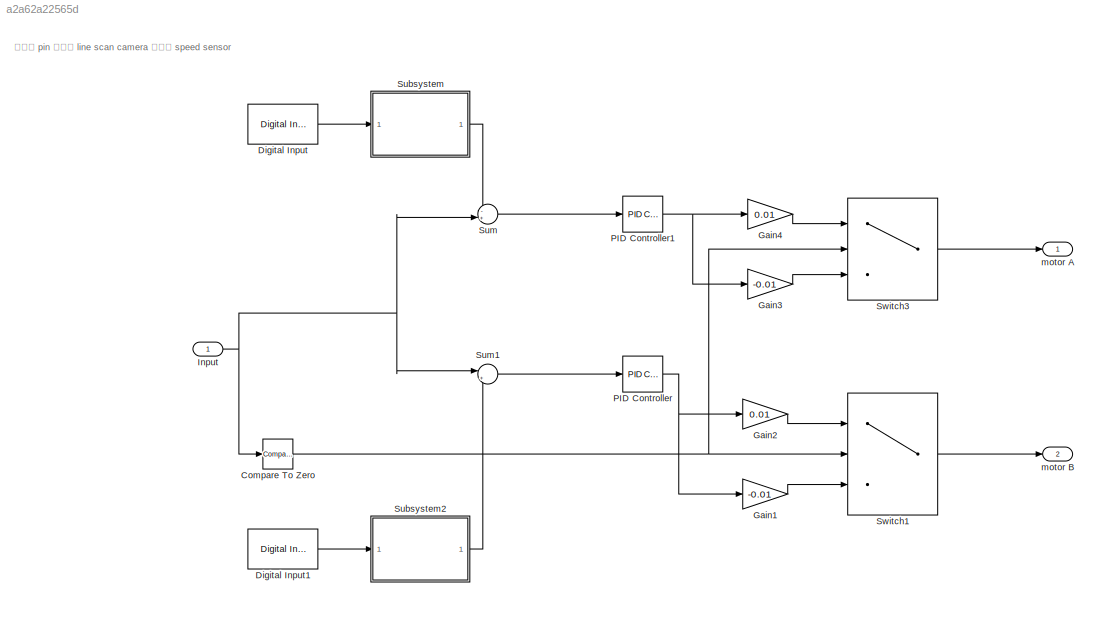
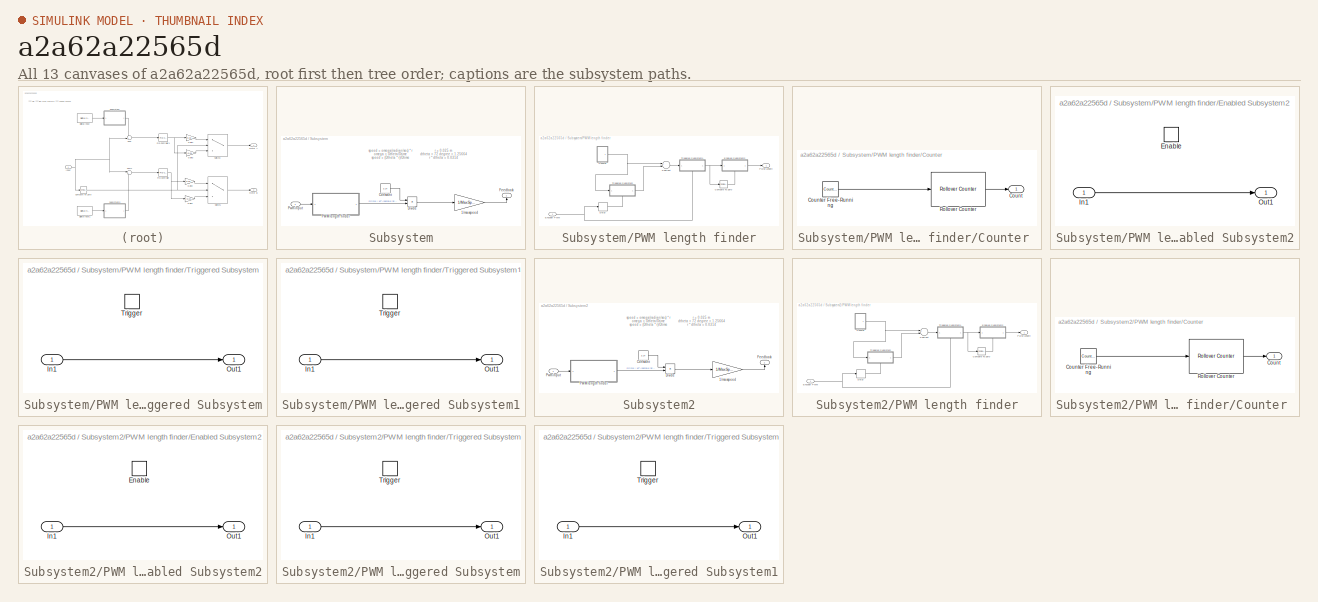
[diagram: thumbnail index - all 13 canvases of the model, root first then tree order]
MODEL slx_a2a62a22565d
KIND model
CONFIG AbsTol = auto
CONFIG EnableMultiTasking = off
CONFIG FixedStep = auto
CONFIG MaxStep = auto
CONFIG MinStep = auto
CONFIG RelTol = 1e-3
CONFIG SampleTimeConstraint = Unconstrained
CONFIG Solver = VariableStepAuto
CONFIG SolverName = VariableStepAuto
CONFIG StartTime = 0.0
CONFIG StopTime = 10.0
BLOCK [Reference] Compare To Zero  REF=simulink/Logic and Bit
Operations/Compare
To Zero
  Ports = [1, 1]
  SourceBlock = simulink/Logic and Bit\nOperations/Compare\nTo Zero
  SourceType = Compare To Zero
BLOCK [Reference] Digital Input  REF=frdmkl25zlib/Digital Input
  Ports = [0, 1]
  Priority = 2
  SourceBlock = frdmkl25zlib/Digital Input
  SourceType = Digital Input
BLOCK [Reference] Digital Input1  REF=frdmkl25zlib/Digital Input
  Ports = [0, 1]
  Priority = 2
  SourceBlock = frdmkl25zlib/Digital Input
  SourceType = Digital Input
BLOCK [Gain] Gain1
  Gain = -0.01
  OutDataTypeStr = Inherit: Inherit via internal rule
  ParamDataTypeStr = Inherit: Inherit via internal rule
  SaturateOnIntegerOverflow = off
BLOCK [Gain] Gain2
  Gain = 0.01
  OutDataTypeStr = Inherit: Inherit via internal rule
  ParamDataTypeStr = Inherit: Inherit via internal rule
  SaturateOnIntegerOverflow = off
BLOCK [Gain] Gain3
  Gain = -0.01
  OutDataTypeStr = Inherit: Inherit via internal rule
  ParamDataTypeStr = Inherit: Inherit via internal rule
  SaturateOnIntegerOverflow = off
BLOCK [Gain] Gain4
  Gain = 0.01
  OutDataTypeStr = Inherit: Inherit via internal rule
  ParamDataTypeStr = Inherit: Inherit via internal rule
  SaturateOnIntegerOverflow = off
BLOCK [Inport] Input 
  IconDisplay = Port number
BLOCK [Reference] PID Controller  REF=simulink/Continuous/PID Controller
  Ports = [1, 1]
  SourceBlock = simulink/Continuous/PID Controller
  SourceType = PID 1dof
BLOCK [Reference] PID Controller1  REF=simulink/Continuous/PID Controller
  Ports = [1, 1]
  SourceBlock = simulink/Continuous/PID Controller
  SourceType = PID 1dof
BLOCK [SubSystem] Subsystem
  Ports = [1, 1]
  RequestExecContextInheritance = off
  Variant = off
BLOCK [Gain] Subsystem/1//maxspeed
  Gain = 1/MaxSpeed
  OutDataTypeStr = Inherit: Inherit via internal rule
  ParamDataTypeStr = Inherit: Inherit via internal rule
  SaturateOnIntegerOverflow = off
BLOCK [Constant] Subsystem/Constant
  Value = 3.14
BLOCK [Product] Subsystem/Divide
  InputSameDT = off
  Inputs = */
  OutDataTypeStr = Inherit: Inherit via internal rule
  Ports = [2, 1]
  RndMeth = Floor
  SaturateOnIntegerOverflow = off
BLOCK [Outport] Subsystem/Feedback
  IconDisplay = Port number
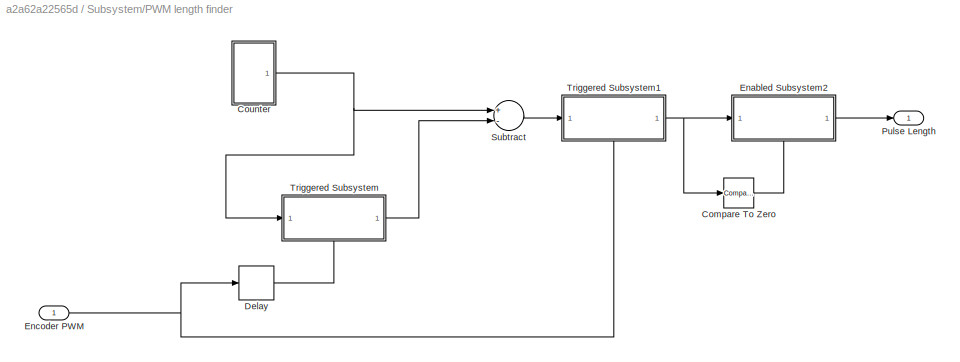
BLOCK [SubSystem] Subsystem/PWM length finder
  Ports = [1, 1]
  RequestExecContextInheritance = off
  Variant = off
BLOCK [Reference] Subsystem/PWM length finder/Compare To Zero  REF=simulink/Logic and Bit
Operations/Compare
To Zero
  Ports = [1, 1]
  SourceBlock = simulink/Logic and Bit\nOperations/Compare\nTo Zero
  SourceType = Compare To Zero
BLOCK [SubSystem] Subsystem/PWM length finder/Counter 
  Ports = [0, 1]
  RequestExecContextInheritance = off
  Variant = off
BLOCK [Outport] Subsystem/PWM length finder/Counter /Count
  IconDisplay = Port number
BLOCK [Reference] Subsystem/PWM length finder/Counter /Counter Free-Running  REF=simulink/Sources/Counter
Free-Running
  Ports = [0, 1]
  SourceBlock = simulink/Sources/Counter\nFree-Running
  SourceType = Counter Free-Running
BLOCK [Reference] Subsystem/PWM length finder/Counter /Rollover Counter   REF=slrtlib/Incremental
Encoder/Utilities/Rollover/Rollover Counter 
  Ports = [1, 1]
  SourceBlock = slrtlib/Incremental\nEncoder/Utilities/Rollover/Rollover Counter
  SourceType = RolloverCounter
BLOCK [Delay] Subsystem/PWM length finder/Delay
  DelayLength = 1
  InitialCondition = 0
  InputPortMap = u0
  Ports = [1, 1]
  SampleTime = 0.01
BLOCK [SubSystem] Subsystem/PWM length finder/Enabled Subsystem2
  Ports = [1, 1, 1]
  RequestExecContextInheritance = off
  TreatAsAtomicUnit = on
  Variant = off
BLOCK [EnablePort] Subsystem/PWM length finder/Enabled Subsystem2/Enable
  Ports = []
BLOCK [Inport] Subsystem/PWM length finder/Enabled Subsystem2/In1
  IconDisplay = Port number
BLOCK [Outport] Subsystem/PWM length finder/Enabled Subsystem2/Out1
  IconDisplay = Port number
BLOCK [Inport] Subsystem/PWM length finder/Encoder PWM
  IconDisplay = Port number
BLOCK [Outport] Subsystem/PWM length finder/Pulse Length
  IconDisplay = Port number
BLOCK [Sum] Subsystem/PWM length finder/Subtract
  InputSameDT = off
  Inputs = +-
  OutDataTypeStr = Inherit: Inherit via internal rule
  Ports = [2, 1]
  SaturateOnIntegerOverflow = off
BLOCK [SubSystem] Subsystem/PWM length finder/Triggered Subsystem
  Ports = [1, 1, 0, 1]
  RequestExecContextInheritance = off
  TreatAsAtomicUnit = on
  Variant = off
BLOCK [Inport] Subsystem/PWM length finder/Triggered Subsystem/In1
  IconDisplay = Port number
BLOCK [Outport] Subsystem/PWM length finder/Triggered Subsystem/Out1
  IconDisplay = Port number
BLOCK [TriggerPort] Subsystem/PWM length finder/Triggered Subsystem/Trigger
  Ports = []
  StatesWhenEnabling = held
  TriggerType = falling
  VariantControl = Variant
BLOCK [SubSystem] Subsystem/PWM length finder/Triggered Subsystem1
  Ports = [1, 1, 0, 1]
  RequestExecContextInheritance = off
  TreatAsAtomicUnit = on
  Variant = off
BLOCK [Inport] Subsystem/PWM length finder/Triggered Subsystem1/In1
  IconDisplay = Port number
BLOCK [Outport] Subsystem/PWM length finder/Triggered Subsystem1/Out1
  IconDisplay = Port number
BLOCK [TriggerPort] Subsystem/PWM length finder/Triggered Subsystem1/Trigger
  Ports = []
  StatesWhenEnabling = held
  TriggerType = falling
  VariantControl = Variant
BLOCK [Inport] Subsystem/Pwm input
  IconDisplay = Port number
BLOCK [SubSystem] Subsystem2
  Ports = [1, 1]
  RequestExecContextInheritance = off
  Variant = off
BLOCK [Gain] Subsystem2/1//maxspeed
  Gain = 1/MaxSpeed
  OutDataTypeStr = Inherit: Inherit via internal rule
  ParamDataTypeStr = Inherit: Inherit via internal rule
  SaturateOnIntegerOverflow = off
BLOCK [Constant] Subsystem2/Constant
  Value = 3.14
BLOCK [Product] Subsystem2/Divide
  InputSameDT = off
  Inputs = */
  OutDataTypeStr = Inherit: Inherit via internal rule
  Ports = [2, 1]
  RndMeth = Floor
  SaturateOnIntegerOverflow = off
BLOCK [Outport] Subsystem2/Feedback
  IconDisplay = Port number
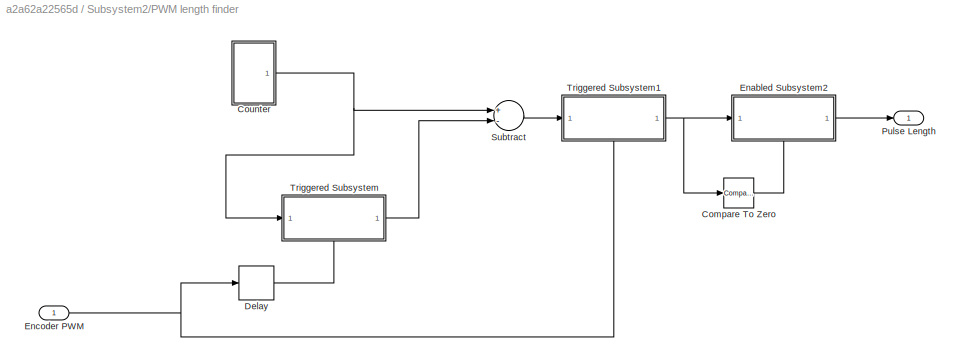
BLOCK [SubSystem] Subsystem2/PWM length finder
  Ports = [1, 1]
  RequestExecContextInheritance = off
  Variant = off
BLOCK [Reference] Subsystem2/PWM length finder/Compare To Zero  REF=simulink/Logic and Bit
Operations/Compare
To Zero
  Ports = [1, 1]
  SourceBlock = simulink/Logic and Bit\nOperations/Compare\nTo Zero
  SourceType = Compare To Zero
BLOCK [SubSystem] Subsystem2/PWM length finder/Counter 
  Ports = [0, 1]
  RequestExecContextInheritance = off
  Variant = off
BLOCK [Outport] Subsystem2/PWM length finder/Counter /Count
  IconDisplay = Port number
BLOCK [Reference] Subsystem2/PWM length finder/Counter /Counter Free-Running  REF=simulink/Sources/Counter
Free-Running
  Ports = [0, 1]
  SourceBlock = simulink/Sources/Counter\nFree-Running
  SourceType = Counter Free-Running
BLOCK [Reference] Subsystem2/PWM length finder/Counter /Rollover Counter   REF=slrtlib/Incremental
Encoder/Utilities/Rollover/Rollover Counter 
  Ports = [1, 1]
  SourceBlock = slrtlib/Incremental\nEncoder/Utilities/Rollover/Rollover Counter
  SourceType = RolloverCounter
BLOCK [Delay] Subsystem2/PWM length finder/Delay
  DelayLength = 1
  InitialCondition = 0
  InputPortMap = u0
  Ports = [1, 1]
  SampleTime = 0.01
BLOCK [SubSystem] Subsystem2/PWM length finder/Enabled Subsystem2
  Ports = [1, 1, 1]
  RequestExecContextInheritance = off
  TreatAsAtomicUnit = on
  Variant = off
BLOCK [EnablePort] Subsystem2/PWM length finder/Enabled Subsystem2/Enable
  Ports = []
BLOCK [Inport] Subsystem2/PWM length finder/Enabled Subsystem2/In1
  IconDisplay = Port number
BLOCK [Outport] Subsystem2/PWM length finder/Enabled Subsystem2/Out1
  IconDisplay = Port number
BLOCK [Inport] Subsystem2/PWM length finder/Encoder PWM
  IconDisplay = Port number
BLOCK [Outport] Subsystem2/PWM length finder/Pulse Length
  IconDisplay = Port number
BLOCK [Sum] Subsystem2/PWM length finder/Subtract
  InputSameDT = off
  Inputs = +-
  OutDataTypeStr = Inherit: Inherit via internal rule
  Ports = [2, 1]
  SaturateOnIntegerOverflow = off
BLOCK [SubSystem] Subsystem2/PWM length finder/Triggered Subsystem
  Ports = [1, 1, 0, 1]
  RequestExecContextInheritance = off
  TreatAsAtomicUnit = on
  Variant = off
BLOCK [Inport] Subsystem2/PWM length finder/Triggered Subsystem/In1
  IconDisplay = Port number
BLOCK [Outport] Subsystem2/PWM length finder/Triggered Subsystem/Out1
  IconDisplay = Port number
BLOCK [TriggerPort] Subsystem2/PWM length finder/Triggered Subsystem/Trigger
  Ports = []
  StatesWhenEnabling = held
  TriggerType = falling
  VariantControl = Variant
BLOCK [SubSystem] Subsystem2/PWM length finder/Triggered Subsystem1
  Ports = [1, 1, 0, 1]
  RequestExecContextInheritance = off
  TreatAsAtomicUnit = on
  Variant = off
BLOCK [Inport] Subsystem2/PWM length finder/Triggered Subsystem1/In1
  IconDisplay = Port number
BLOCK [Outport] Subsystem2/PWM length finder/Triggered Subsystem1/Out1
  IconDisplay = Port number
BLOCK [TriggerPort] Subsystem2/PWM length finder/Triggered Subsystem1/Trigger
  Ports = []
  StatesWhenEnabling = held
  TriggerType = falling
  VariantControl = Variant
BLOCK [Inport] Subsystem2/Pwm input
  IconDisplay = Port number
BLOCK [Sum] Sum
  IconShape = round
  InputSameDT = off
  Inputs = -+|
  OutDataTypeStr = Inherit: Inherit via internal rule
  Ports = [2, 1]
  SaturateOnIntegerOverflow = off
BLOCK [Sum] Sum1
  IconShape = round
  InputSameDT = off
  Inputs = |+-
  OutDataTypeStr = Inherit: Inherit via internal rule
  Ports = [2, 1]
  SaturateOnIntegerOverflow = off
BLOCK [Switch] Switch1
  Criteria = u2 > Threshold
  InputSameDT = off
  SaturateOnIntegerOverflow = off
BLOCK [Switch] Switch3
  Criteria = u2 > Threshold
  InputSameDT = off
  SaturateOnIntegerOverflow = off
BLOCK [Outport] motor A
  IconDisplay = Port number
BLOCK [Outport] motor B 
  IconDisplay = Port number
  Port = 2
ANNOTATION (root): ใช้ pin ของ line scan camera แทน speed sensor
ANNOTATION Subsystem: r = 0.025 m dtheta = 72 degree = 1.25664 r * dtheta = 0.0314
ANNOTATION Subsystem: speed = omega(radian/sec) * r omega = Dtheta/Dtime speed = (Dtheta * r)/Dtime
ANNOTATION Subsystem2: r = 0.025 m dtheta = 72 degree = 1.25664 r * dtheta = 0.0314
ANNOTATION Subsystem2: speed = omega(radian/sec) * r omega = Dtheta/Dtime speed = (Dtheta * r)/Dtime
NET Compare To Zero:1 -> Switch1:2, Switch3:2
LINE Digital Input1:1 -> Subsystem2:1
LINE Digital Input:1 -> Subsystem:1
LINE Gain1:1 -> Switch1:3
LINE Gain2:1 -> Switch1:1
LINE Gain3:1 -> Switch3:3
LINE Gain4:1 -> Switch3:1
NET Input :1 -> Compare To Zero:1, Sum1:1, Sum:2
NET PID Controller1:1 -> Gain3:1, Gain4:1
NET PID Controller:1 -> Gain1:1, Gain2:1
LINE Subsystem/1//maxspeed:1 -> Subsystem/Feedback:1
LINE Subsystem/Constant:1 -> Subsystem/Divide:1
LINE Subsystem/Divide:1 -> Subsystem/1//maxspeed:1
LINE Subsystem/PWM length finder/Compare To Zero:1 -> Subsystem/PWM length finder/Enabled Subsystem2:enable
LINE Subsystem/PWM length finder/Counter /Counter Free-Running:1 -> Subsystem/PWM length finder/Counter /Rollover Counter :1
LINE Subsystem/PWM length finder/Counter /Rollover Counter :1 -> Subsystem/PWM length finder/Counter /Count:1
NET Subsystem/PWM length finder/Counter :1 -> Subsystem/PWM length finder/Subtract:1, Subsystem/PWM length finder/Triggered Subsystem:1
LINE Subsystem/PWM length finder/Delay:1 -> Subsystem/PWM length finder/Triggered Subsystem:trigger
LINE Subsystem/PWM length finder/Enabled Subsystem2/In1:1 -> Subsystem/PWM length finder/Enabled Subsystem2/Out1:1
LINE Subsystem/PWM length finder/Enabled Subsystem2:1 -> Subsystem/PWM length finder/Pulse Length:1
NET Subsystem/PWM length finder/Encoder PWM:1 -> Subsystem/PWM length finder/Delay:1, Subsystem/PWM length finder/Triggered Subsystem1:trigger
LINE Subsystem/PWM length finder/Subtract:1 -> Subsystem/PWM length finder/Triggered Subsystem1:1
LINE Subsystem/PWM length finder/Triggered Subsystem/In1:1 -> Subsystem/PWM length finder/Triggered Subsystem/Out1:1
LINE Subsystem/PWM length finder/Triggered Subsystem1/In1:1 -> Subsystem/PWM length finder/Triggered Subsystem1/Out1:1
NET Subsystem/PWM length finder/Triggered Subsystem1:1 -> Subsystem/PWM length finder/Compare To Zero:1, Subsystem/PWM length finder/Enabled Subsystem2:1
LINE Subsystem/PWM length finder/Triggered Subsystem:1 -> Subsystem/PWM length finder/Subtract:2
LINE Subsystem/PWM length finder:1 -> Subsystem/Divide:2
LINE Subsystem/Pwm input:1 -> Subsystem/PWM length finder:1
LINE Subsystem2/1//maxspeed:1 -> Subsystem2/Feedback:1
LINE Subsystem2/Constant:1 -> Subsystem2/Divide:1
LINE Subsystem2/Divide:1 -> Subsystem2/1//maxspeed:1
LINE Subsystem2/PWM length finder/Compare To Zero:1 -> Subsystem2/PWM length finder/Enabled Subsystem2:enable
LINE Subsystem2/PWM length finder/Counter /Counter Free-Running:1 -> Subsystem2/PWM length finder/Counter /Rollover Counter :1
LINE Subsystem2/PWM length finder/Counter /Rollover Counter :1 -> Subsystem2/PWM length finder/Counter /Count:1
NET Subsystem2/PWM length finder/Counter :1 -> Subsystem2/PWM length finder/Subtract:1, Subsystem2/PWM length finder/Triggered Subsystem:1
LINE Subsystem2/PWM length finder/Delay:1 -> Subsystem2/PWM length finder/Triggered Subsystem:trigger
LINE Subsystem2/PWM length finder/Enabled Subsystem2/In1:1 -> Subsystem2/PWM length finder/Enabled Subsystem2/Out1:1
LINE Subsystem2/PWM length finder/Enabled Subsystem2:1 -> Subsystem2/PWM length finder/Pulse Length:1
NET Subsystem2/PWM length finder/Encoder PWM:1 -> Subsystem2/PWM length finder/Delay:1, Subsystem2/PWM length finder/Triggered Subsystem1:trigger
LINE Subsystem2/PWM length finder/Subtract:1 -> Subsystem2/PWM length finder/Triggered Subsystem1:1
LINE Subsystem2/PWM length finder/Triggered Subsystem/In1:1 -> Subsystem2/PWM length finder/Triggered Subsystem/Out1:1
LINE Subsystem2/PWM length finder/Triggered Subsystem1/In1:1 -> Subsystem2/PWM length finder/Triggered Subsystem1/Out1:1
NET Subsystem2/PWM length finder/Triggered Subsystem1:1 -> Subsystem2/PWM length finder/Compare To Zero:1, Subsystem2/PWM length finder/Enabled Subsystem2:1
LINE Subsystem2/PWM length finder/Triggered Subsystem:1 -> Subsystem2/PWM length finder/Subtract:2
LINE Subsystem2/PWM length finder:1 -> Subsystem2/Divide:2
LINE Subsystem2/Pwm input:1 -> Subsystem2/PWM length finder:1
LINE Subsystem2:1 -> Sum1:2
LINE Subsystem:1 -> Sum:1
LINE Sum1:1 -> PID Controller:1
LINE Sum:1 -> PID Controller1:1
LINE Switch1:1 -> motor B :1
LINE Switch3:1 -> motor A:1
note: NET lines group one-source signal fan-out (src -> all destinations, sorted); 1:1 wires keep LINE
